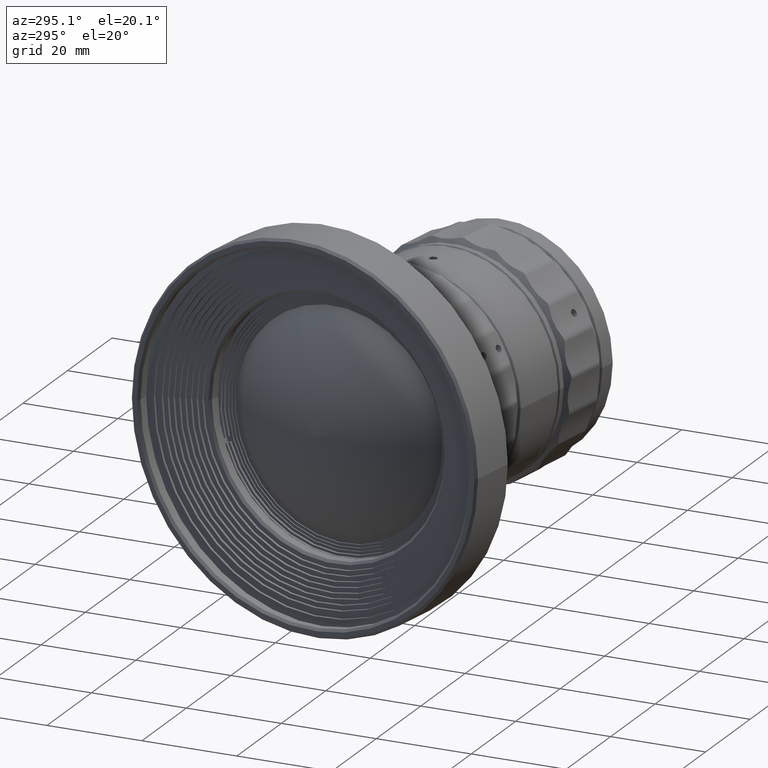
[diagram: clean part render]
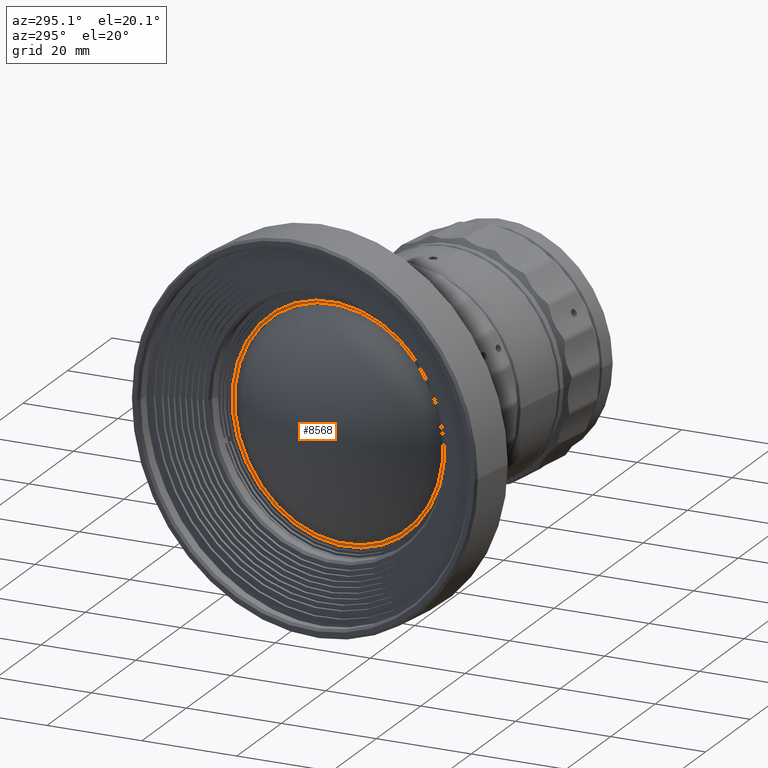
[diagram: same view with one face highlighted and labeled with its STEP entity id]
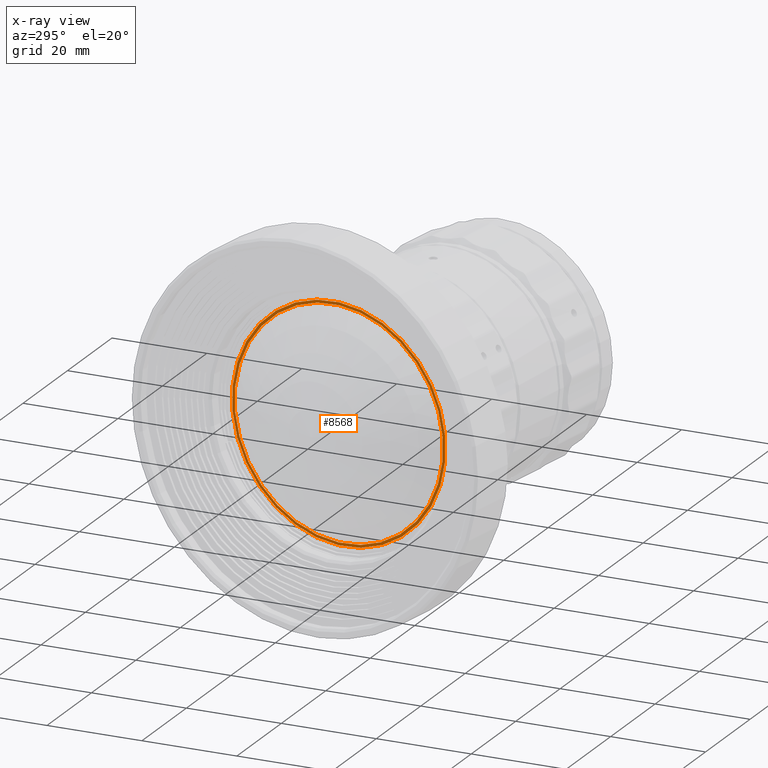
[diagram: x-ray of the same camera — body ghosted, the highlighted face saturated]
A machine part, auxiliary view. The second image highlights one B-rep face of the part: STEP entity #8568.
The next image is the same camera in x-ray: the body ghosted, the highlighted face saturated — about 0% of this face is hidden behind the body in this view.
In plain terms, the highlighted planar face has unit normal (-0.9869, 0.1612, -0).
Its self-contained STEP definition (entity closure, byte-faithful):
#120 = DIRECTION ( 'NONE',  ( -0.1534135479882030584, -0.9392272819778186843, 0.3071097459903058269 ) ) ;
#1536 = EDGE_CURVE ( 'NONE', #29362, #56977, #44962, .T. ) ;
#2719 = CIRCLE ( 'NONE', #45550, 24.10019698076001049 ) ;
#3800 = DIRECTION ( 'NONE',  ( -0.1534135479882031416, -0.9392272819778189064, 0.3071097459903058824 ) ) ;
#4266 = DIRECTION ( 'NONE',  ( 0.9869211278471822224, -0.1612038690877050373, 6.964509332734352197E-15 ) ) ;
#4418 = FACE_OUTER_BOUND ( 'NONE', #56513, .T. ) ;
#4704 = PLANE ( 'NONE',  #46539 ) ;
#5772 = ORIENTED_EDGE ( 'NONE', *, *, #18660, .F. ) ;
#8568 = ADVANCED_FACE ( 'NONE', ( #10050, #4418 ), #4704, .T. ) ;
#10050 = FACE_BOUND ( 'NONE', #20920, .T. ) ;
#11945 = VERTEX_POINT ( 'NONE', #38861 ) ;
#16014 = CARTESIAN_POINT ( 'NONE',  ( 112.5462337888293973, -27.50092948850720020, -18.76329369249019763 ) ) ;
#18660 = EDGE_CURVE ( 'NONE', #56977, #29362, #43797, .T. ) ;
#19220 = DIRECTION ( 'NONE',  ( 0.1534135479882031139, 0.9392272819778187953, -0.3071097459903058824 ) ) ;
#20920 = EDGE_LOOP ( 'NONE', ( #24791, #49747 ) ) ;
#22605 = CARTESIAN_POINT ( 'NONE',  ( 112.5462337888293973, -27.50092948850720020, -18.76329369249019763 ) ) ;
#24791 = ORIENTED_EDGE ( 'NONE', *, *, #47856, .F. ) ;
#28229 = DIRECTION ( 'NONE',  ( -0.9869211278471822224, 0.1612038690877045377, -6.869504964868152938E-15 ) ) ;
#29362 = VERTEX_POINT ( 'NONE', #40601 ) ;
#29678 = AXIS2_PLACEMENT_3D ( 'NONE', #54934, #51330, #19220 ) ;
#33333 = AXIS2_PLACEMENT_3D ( 'NONE', #16014, #40140, #3800 ) ;
#36240 = CARTESIAN_POINT ( 'NONE',  ( 116.2435305148623996, -4.865366983137960233, -26.16469906556769942 ) ) ;
#37458 = DIRECTION ( 'NONE',  ( -6.960540990598640426E-15, 0.000000000000000000, 1.000000000000000000 ) ) ;
#38861 = CARTESIAN_POINT ( 'NONE',  ( 108.8489370627966082, -50.13649199387649702, -11.36188831941264077 ) ) ;
#40019 = CARTESIAN_POINT ( 'NONE',  ( 112.5462337888293973, -27.50092948850720020, -18.76329369249019763 ) ) ;
#40140 = DIRECTION ( 'NONE',  ( 0.9869211278471822224, -0.1612038690877050373, 6.964509332734352197E-15 ) ) ;
#40601 = CARTESIAN_POINT ( 'NONE',  ( 116.3355787730459951, -4.301829821797580777, -26.34896517218135159 ) ) ;
#41123 = CIRCLE ( 'NONE', #29678, 24.10019698076000338 ) ;
#43797 = CIRCLE ( 'NONE', #33333, 24.70019782417000798 ) ;
#44962 = CIRCLE ( 'NONE', #55378, 24.70019782417000442 ) ;
#45550 = AXIS2_PLACEMENT_3D ( 'NONE', #54036, #50451, #120 ) ;
#46539 = AXIS2_PLACEMENT_3D ( 'NONE', #22605, #28229, #37458 ) ;
#47856 = EDGE_CURVE ( 'NONE', #11945, #56126, #2719, .T. ) ;
#49747 = ORIENTED_EDGE ( 'NONE', *, *, #53387, .F. ) ;
#50312 = ORIENTED_EDGE ( 'NONE', *, *, #1536, .F. ) ;
#50451 = DIRECTION ( 'NONE',  ( -0.9869211278471822224, 0.1612038690877050373, -6.948600687916342266E-15 ) ) ;
#51330 = DIRECTION ( 'NONE',  ( -0.9869211278471822224, 0.1612038690877050373, -6.948600687916342266E-15 ) ) ;
#53387 = EDGE_CURVE ( 'NONE', #56126, #11945, #41123, .T. ) ;
#54036 = CARTESIAN_POINT ( 'NONE',  ( 112.5462337888293973, -27.50092948850720020, -18.76329369249019763 ) ) ;
#54934 = CARTESIAN_POINT ( 'NONE',  ( 112.5462337888293973, -27.50092948850720020, -18.76329369249019763 ) ) ;
#55378 = AXIS2_PLACEMENT_3D ( 'NONE', #40019, #4266, #58161 ) ;
#56126 = VERTEX_POINT ( 'NONE', #36240 ) ;
#56513 = EDGE_LOOP ( 'NONE', ( #5772, #50312 ) ) ;
#56977 = VERTEX_POINT ( 'NONE', #57086 ) ;
#57086 = CARTESIAN_POINT ( 'NONE',  ( 108.7568888046130127, -50.70002915521680364, -11.17762221279901880 ) ) ;
#58161 = DIRECTION ( 'NONE',  ( 0.1534135479882031694, 0.9392272819778187953, -0.3071097459903058824 ) ) ;